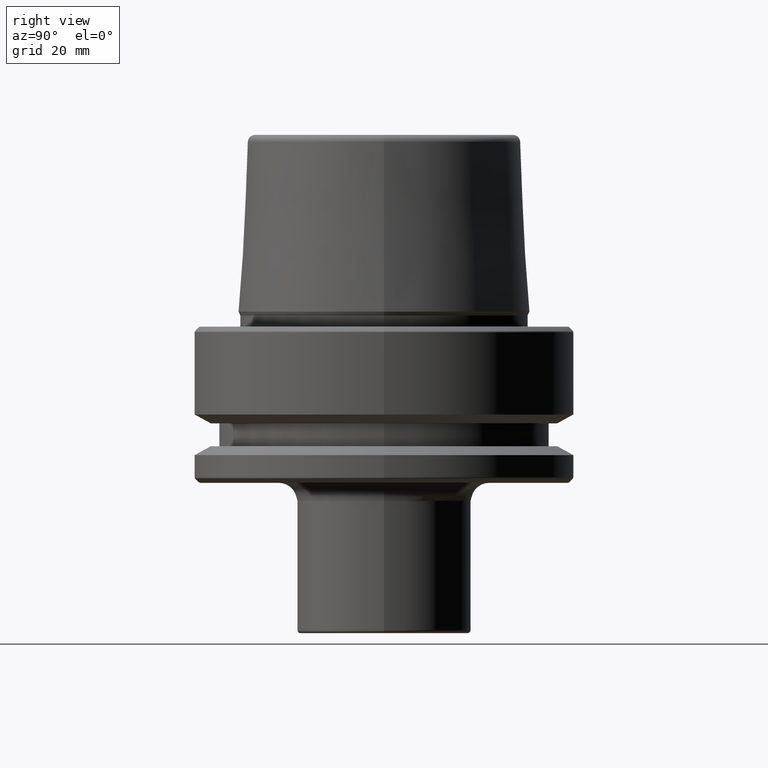
[diagram: clean part render]
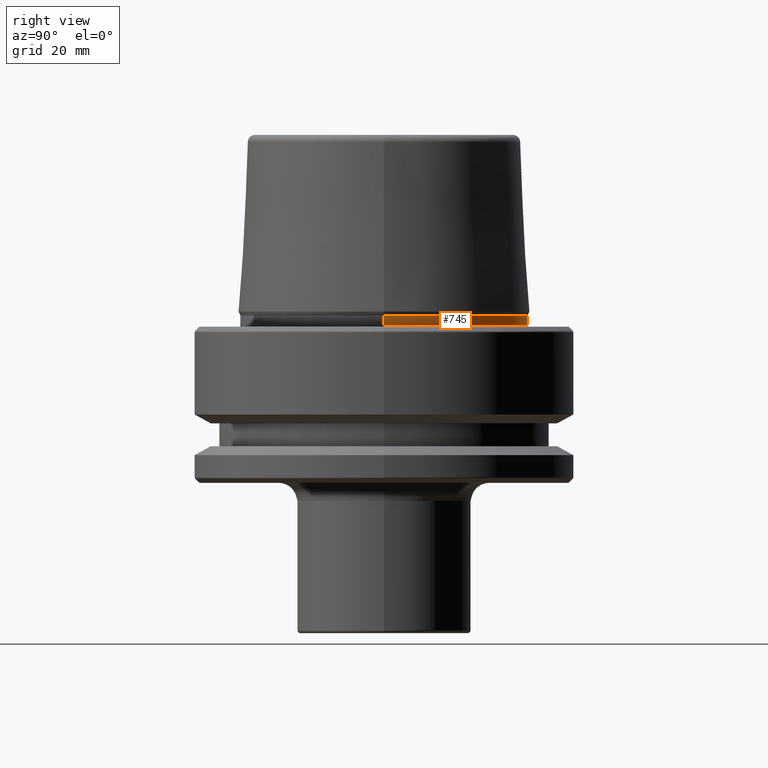
[diagram: same view with one face highlighted and labeled with its STEP entity id]
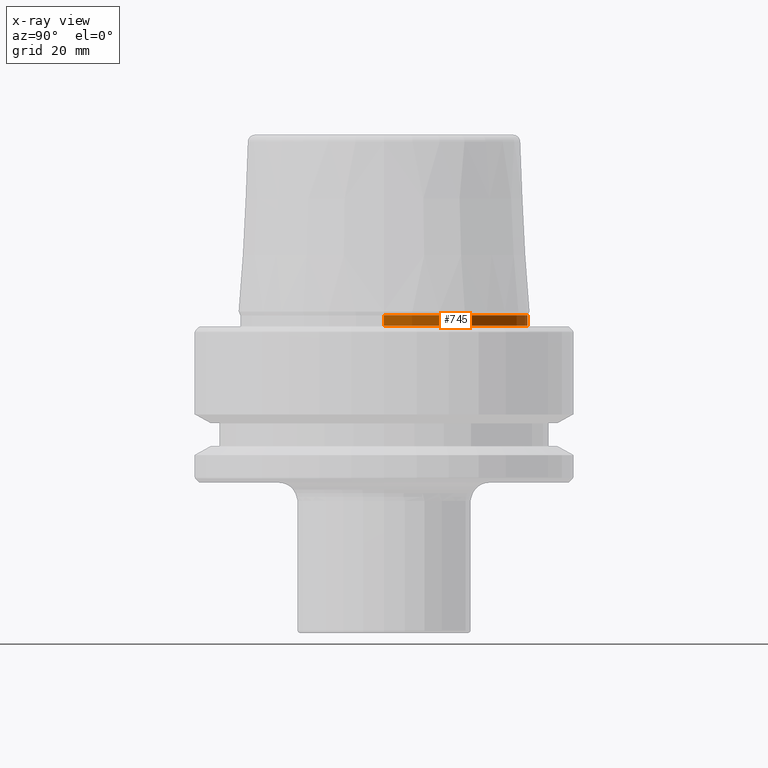
[diagram: x-ray of the same camera — body ghosted, the highlighted face saturated]
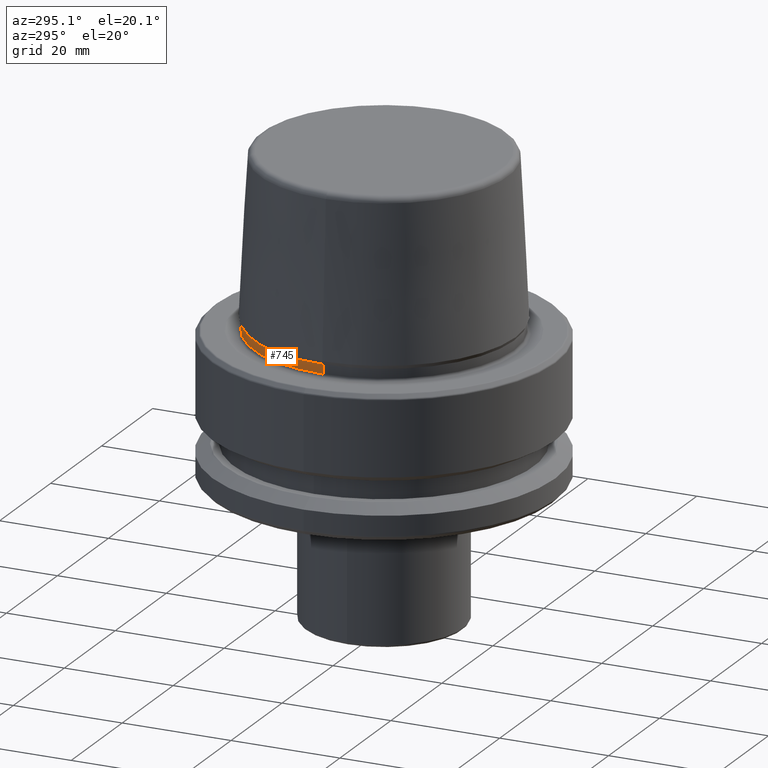
[diagram: same view with one face highlighted and labeled with its STEP entity id]
A machine part, right view. The second image highlights one B-rep face of the part: STEP entity #745.
The next image is the same camera in x-ray: the body ghosted, the highlighted face saturated — about 0% of this face is hidden behind the body in this view.
A second angle (auxiliary view) of the same face is appended — the face is thin or edge-on in the first view.
In plain terms, the highlighted cylindrical surface (partial cylindrical patch) has radius 23.89 mm, axis along (-0, -0, 1).
Its self-contained STEP definition (entity closure, byte-faithful):
#26 = DIRECTION ( 'NONE',  ( -0.0000000000000000000, -0.0000000000000000000, 1.000000000000000000 ) ) ;
#37 = CARTESIAN_POINT ( 'NONE',  ( 0.0000000000000000000, 0.0000000000000000000, 78.96908074195309300 ) ) ;
#59 = CYLINDRICAL_SURFACE ( 'NONE', #357, 23.89000000000000100 ) ;
#60 = AXIS2_PLACEMENT_3D ( 'NONE', #1153, #1253, #1086 ) ;
#70 = VERTEX_POINT ( 'NONE', #703 ) ;
#101 = CARTESIAN_POINT ( 'NONE',  ( 23.89000000000000100, 0.0000000000000000000, 78.96908074195309300 ) ) ;
#167 = CARTESIAN_POINT ( 'NONE',  ( 23.89000000000000100, 0.0000000000000000000, 1.845119734979375100 ) ) ;
#188 = VECTOR ( 'NONE', #26, 1000.000000000000000 ) ;
#255 = EDGE_LOOP ( 'NONE', ( #972, #1152, #770, #403 ) ) ;
#263 = CARTESIAN_POINT ( 'NONE',  ( 23.89000000000000400, 0.0000000000000000000, 0.1312552021302954000 ) ) ;
#285 = DIRECTION ( 'NONE',  ( -0.0000000000000000000, -0.0000000000000000000, 1.000000000000000000 ) ) ;
#293 = VERTEX_POINT ( 'NONE', #167 ) ;
#357 = AXIS2_PLACEMENT_3D ( 'NONE', #37, #528, #1206 ) ;
#403 = ORIENTED_EDGE ( 'NONE', *, *, #762, .F. ) ;
#473 = LINE ( 'NONE', #101, #188 ) ;
#486 = DIRECTION ( 'NONE',  ( 1.000000000000000000, 0.0000000000000000000, 0.0000000000000000000 ) ) ;
#497 = CARTESIAN_POINT ( 'NONE',  ( -23.89000000000000100, 2.944380070784114200E-015, 1.845119734979375100 ) ) ;
#518 = VERTEX_POINT ( 'NONE', #497 ) ;
#525 = DIRECTION ( 'NONE',  ( -0.0000000000000000000, -0.0000000000000000000, 1.000000000000000000 ) ) ;
#528 = DIRECTION ( 'NONE',  ( -0.0000000000000000000, -0.0000000000000000000, 1.000000000000000000 ) ) ;
#534 = CIRCLE ( 'NONE', #1194, 23.89000000000000100 ) ;
#542 = EDGE_CURVE ( 'NONE', #293, #518, #534, .T. ) ;
#569 = EDGE_CURVE ( 'NONE', #836, #70, #1017, .T. ) ;
#594 = CARTESIAN_POINT ( 'NONE',  ( 0.0000000000000000000, 0.0000000000000000000, 1.845119734979375100 ) ) ;
#703 = CARTESIAN_POINT ( 'NONE',  ( -23.89000000000000400, 2.961613815265650600E-015, 0.1312552021302954000 ) ) ;
#707 = EDGE_CURVE ( 'NONE', #70, #518, #754, .T. ) ;
#745 = ADVANCED_FACE ( 'NONE', ( #1060 ), #59, .T. ) ;
#754 = LINE ( 'NONE', #1212, #1250 ) ;
#762 = EDGE_CURVE ( 'NONE', #836, #293, #473, .T. ) ;
#770 = ORIENTED_EDGE ( 'NONE', *, *, #542, .F. ) ;
#836 = VERTEX_POINT ( 'NONE', #263 ) ;
#972 = ORIENTED_EDGE ( 'NONE', *, *, #569, .T. ) ;
#1017 = CIRCLE ( 'NONE', #60, 23.89000000000000400 ) ;
#1060 = FACE_OUTER_BOUND ( 'NONE', #255, .T. ) ;
#1086 = DIRECTION ( 'NONE',  ( 1.000000000000000000, 0.0000000000000000000, 0.0000000000000000000 ) ) ;
#1152 = ORIENTED_EDGE ( 'NONE', *, *, #707, .T. ) ;
#1153 = CARTESIAN_POINT ( 'NONE',  ( 0.0000000000000000000, 0.0000000000000000000, 0.1312552021302954000 ) ) ;
#1194 = AXIS2_PLACEMENT_3D ( 'NONE', #594, #285, #486 ) ;
#1206 = DIRECTION ( 'NONE',  ( 1.000000000000000000, 0.0000000000000000000, 0.0000000000000000000 ) ) ;
#1212 = CARTESIAN_POINT ( 'NONE',  ( -23.89000000000000100, 2.925681203163027000E-015, 78.96908074195309300 ) ) ;
#1250 = VECTOR ( 'NONE', #525, 1000.000000000000000 ) ;
#1253 = DIRECTION ( 'NONE',  ( -0.0000000000000000000, -0.0000000000000000000, 1.000000000000000000 ) ) ;